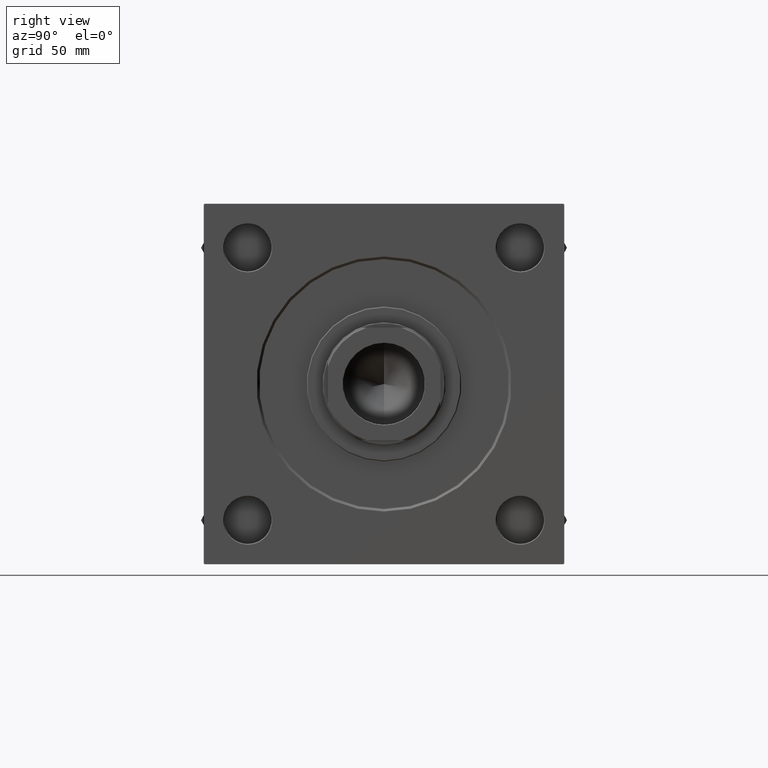
[diagram: clean part render]
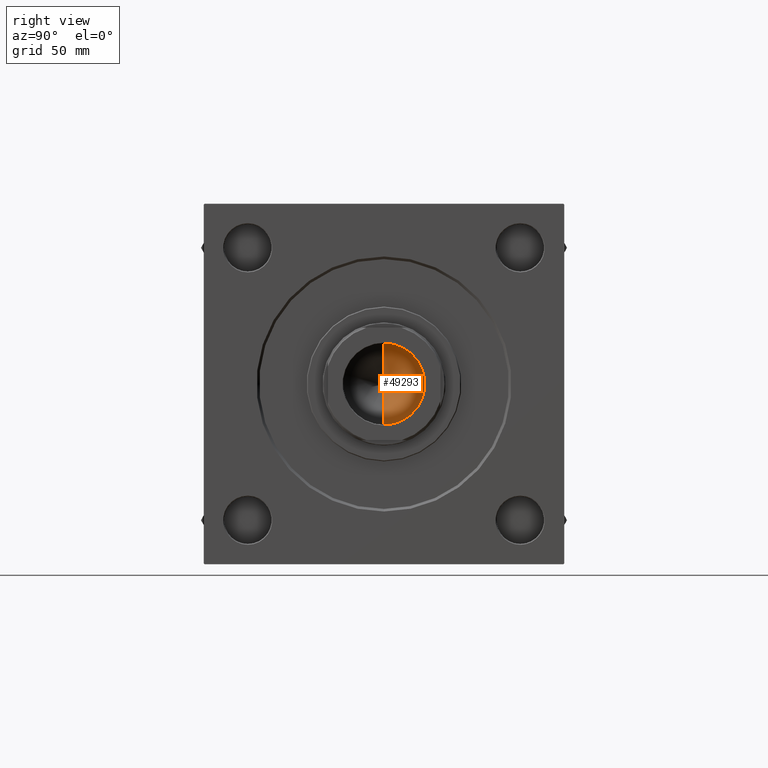
[diagram: same view with one face highlighted and labeled with its STEP entity id]
A machine part, right view. The second image highlights one B-rep face of the part: STEP entity #49293.
In plain terms, the highlighted conical surface has half-angle 59 deg.
Its self-contained STEP definition (entity closure, byte-faithful):
#487 = ORIENTED_EDGE ( 'NONE', *, *, #23658, .T. ) ;
#1259 = CARTESIAN_POINT ( 'NONE',  ( 0.000000000000000000, 0.000000000000000000, 136.9999999999999716 ) ) ;
#1513 = CARTESIAN_POINT ( 'NONE',  ( -23.24999999999998579, 2.847303808017594561E-15, 136.9999999999999716 ) ) ;
#4280 = CARTESIAN_POINT ( 'NONE',  ( 23.24999999999998579, 0.000000000000000000, 136.9999999999999716 ) ) ;
#4583 = VERTEX_POINT ( 'NONE', #24199 ) ;
#4895 = CARTESIAN_POINT ( 'NONE',  ( 23.24999999999998579, 0.000000000000000000, 136.9999999999999716 ) ) ;
#5412 = EDGE_LOOP ( 'NONE', ( #17821, #18209, #487 ) ) ;
#5416 = DIRECTION ( 'NONE',  ( 1.000000000000000000, 0.000000000000000000, 0.000000000000000000 ) ) ;
#5599 = FACE_OUTER_BOUND ( 'NONE', #5412, .T. ) ;
#6093 = VERTEX_POINT ( 'NONE', #30907 ) ;
#7742 = EDGE_CURVE ( 'NONE', #6093, #45468, #32347, .T. ) ;
#9519 = CARTESIAN_POINT ( 'NONE',  ( 0.000000000000000000, 0.000000000000000000, 136.9999999999999716 ) ) ;
#9707 = DIRECTION ( 'NONE',  ( -0.000000000000000000, -0.000000000000000000, 1.000000000000000000 ) ) ;
#11129 = EDGE_CURVE ( 'NONE', #6093, #4583, #37419, .T. ) ;
#13308 = DIRECTION ( 'NONE',  ( 1.000000000000000000, 0.000000000000000000, 0.000000000000000000 ) ) ;
#14824 = AXIS2_PLACEMENT_3D ( 'NONE', #9519, #40561, #5416 ) ;
#17395 = CONICAL_SURFACE ( 'NONE', #25602, 23.24999999999998579, 1.029744258676653867 ) ;
#17821 = ORIENTED_EDGE ( 'NONE', *, *, #7742, .F. ) ;
#18209 = ORIENTED_EDGE ( 'NONE', *, *, #11129, .T. ) ;
#23658 = EDGE_CURVE ( 'NONE', #4583, #45468, #27077, .T. ) ;
#24199 = CARTESIAN_POINT ( 'NONE',  ( -23.24999999999998579, 2.847303808017594561E-15, 136.9999999999999716 ) ) ;
#25092 = DIRECTION ( 'NONE',  ( -0.8571673007021120005, 1.049727191138618326E-16, 0.5150380749100547106 ) ) ;
#25602 = AXIS2_PLACEMENT_3D ( 'NONE', #1259, #9707, #13308 ) ;
#27077 = CIRCLE ( 'NONE', #14824, 23.24999999999998579 ) ;
#28486 = DIRECTION ( 'NONE',  ( 0.8571673007021120005, 0.000000000000000000, 0.5150380749100547106 ) ) ;
#30907 = CARTESIAN_POINT ( 'NONE',  ( -2.017796283410109980E-14, 0.000000000000000000, 123.0299906076092071 ) ) ;
#32347 = LINE ( 'NONE', #4895, #50614 ) ;
#37419 = LINE ( 'NONE', #1513, #48977 ) ;
#40561 = DIRECTION ( 'NONE',  ( -0.000000000000000000, -0.000000000000000000, 1.000000000000000000 ) ) ;
#45468 = VERTEX_POINT ( 'NONE', #4280 ) ;
#48977 = VECTOR ( 'NONE', #25092, 1000.000000000000000 ) ;
#49293 = ADVANCED_FACE ( 'NONE', ( #5599 ), #17395, .F. ) ;
#50614 = VECTOR ( 'NONE', #28486, 1000.000000000000000 ) ;